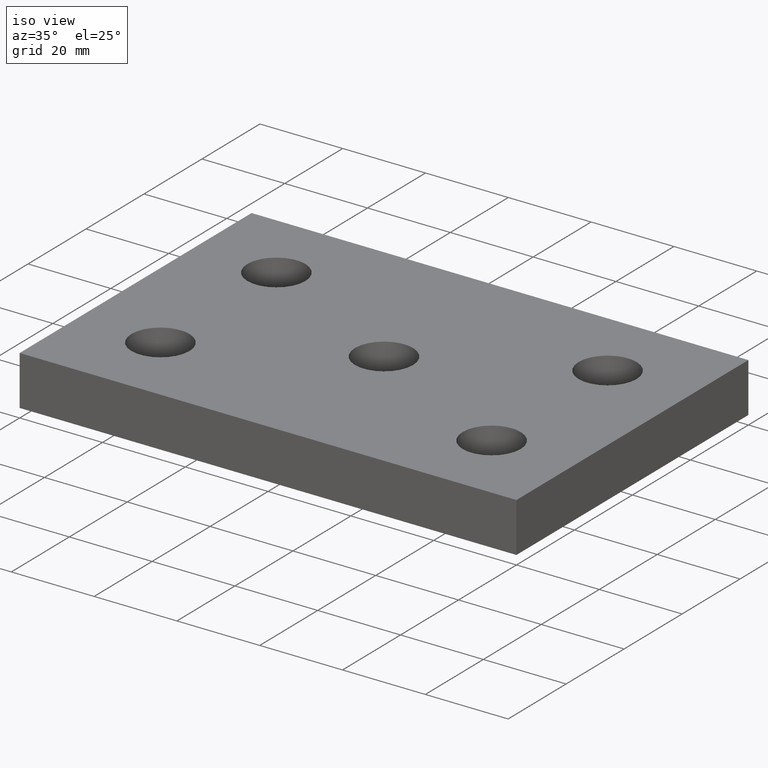
[diagram: clean part render]
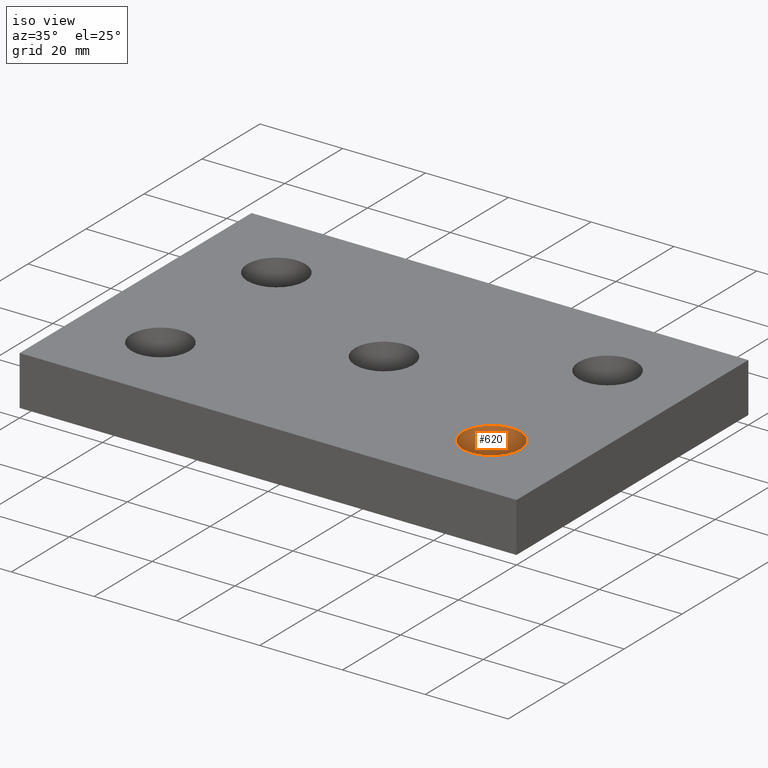
[diagram: same view with one face highlighted and labeled with its STEP entity id]
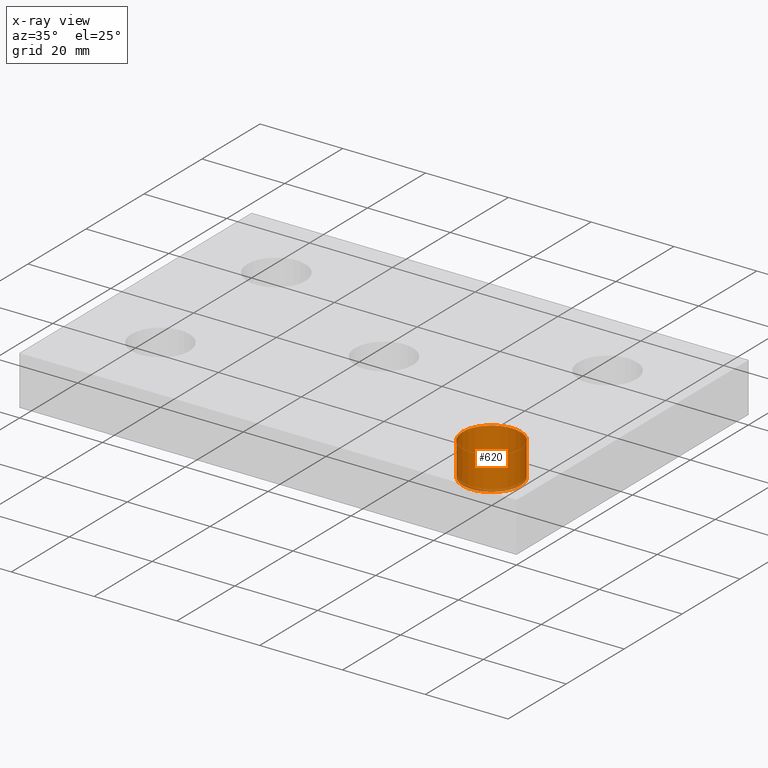
[diagram: x-ray of the same camera — body ghosted, the highlighted face saturated]
A machine part, iso view. The second image highlights one B-rep face of the part: STEP entity #620.
The next image is the same camera in x-ray: the body ghosted, the highlighted face saturated — about 5% of this face is hidden behind the body in this view.
In plain terms, the highlighted cylindrical surface (bore or boss wall) has radius 7 mm, axis along (0, 0, 1).
Its self-contained STEP definition (entity closure, byte-faithful):
#197=CARTESIAN_POINT('',(32.999991119839933,-19.999995559919626,12.0));
#198=VERTEX_POINT('',#197);
#199=CARTESIAN_POINT('',(46.999991119839933,-19.999995559919626,11.999999999999998));
#200=VERTEX_POINT('',#199);
#201=CARTESIAN_POINT('',(39.999991119839933,-19.999995559919626,12.0));
#202=DIRECTION('',(0.0,6.123234E-017,1.0));
#203=DIRECTION('',(1.0,0.0,0.0));
#204=AXIS2_PLACEMENT_3D('',#201,#202,#203);
#205=CIRCLE('',#204,7.0);
#206=EDGE_CURVE('',#198,#200,#205,.T.);
#208=CARTESIAN_POINT('',(39.999991119839933,-19.999995559919626,12.0));
#209=DIRECTION('',(0.0,6.123234E-017,1.0));
#210=DIRECTION('',(1.0,0.0,0.0));
#211=AXIS2_PLACEMENT_3D('',#208,#209,#210);
#212=CIRCLE('',#211,7.0);
#213=EDGE_CURVE('',#200,#198,#212,.T.);
#577=CARTESIAN_POINT('',(46.999991119839933,-19.999995559919626,4.0));
#578=VERTEX_POINT('',#577);
#579=CARTESIAN_POINT('',(32.999991119839933,-19.999995559919626,4.0));
#580=VERTEX_POINT('',#579);
#581=CARTESIAN_POINT('',(39.999991119839933,-19.999995559919626,4.0));
#582=DIRECTION('',(0.0,6.123234E-017,1.0));
#583=DIRECTION('',(1.0,0.0,0.0));
#584=AXIS2_PLACEMENT_3D('',#581,#582,#583);
#585=CIRCLE('',#584,7.0);
#586=EDGE_CURVE('',#578,#580,#585,.T.);
#588=CARTESIAN_POINT('',(39.999991119839933,-19.999995559919626,4.0));
#589=DIRECTION('',(0.0,6.123234E-017,1.0));
#590=DIRECTION('',(1.0,0.0,0.0));
#591=AXIS2_PLACEMENT_3D('',#588,#589,#590);
#592=CIRCLE('',#591,7.0);
#593=EDGE_CURVE('',#580,#578,#592,.T.);
#602=CARTESIAN_POINT('',(39.999991119839933,-19.999995559919626,4.0));
#603=DIRECTION('',(0.0,6.123234E-017,1.0));
#604=DIRECTION('',(1.0,0.0,0.0));
#605=AXIS2_PLACEMENT_3D('',#602,#603,#604);
#606=CYLINDRICAL_SURFACE('',#605,7.0);
#607=CARTESIAN_POINT('',(46.999991119839933,-19.999995559919626,4.0));
#608=DIRECTION('',(0.0,0.0,1.0));
#609=VECTOR('',#608,7.999999999999998);
#610=LINE('',#607,#609);
#611=EDGE_CURVE('',#578,#200,#610,.T.);
#612=ORIENTED_EDGE('',*,*,#611,.T.);
#613=ORIENTED_EDGE('',*,*,#213,.T.);
#614=ORIENTED_EDGE('',*,*,#206,.T.);
#615=ORIENTED_EDGE('',*,*,#611,.F.);
#616=ORIENTED_EDGE('',*,*,#593,.F.);
#617=ORIENTED_EDGE('',*,*,#586,.F.);
#618=EDGE_LOOP('',(#612,#613,#614,#615,#616,#617));
#619=FACE_OUTER_BOUND('',#618,.T.);
#620=ADVANCED_FACE('',(#619),#606,.F.);